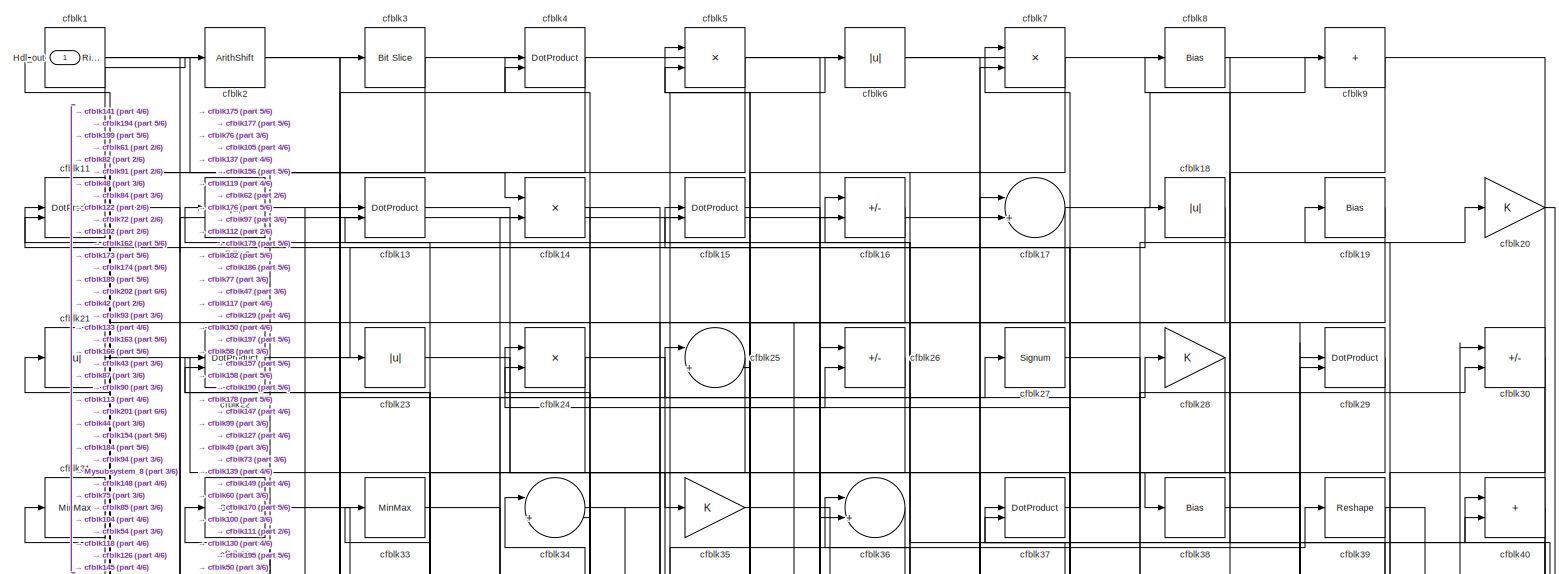
[diagram: root canvas - part 1/6, full width, top band]
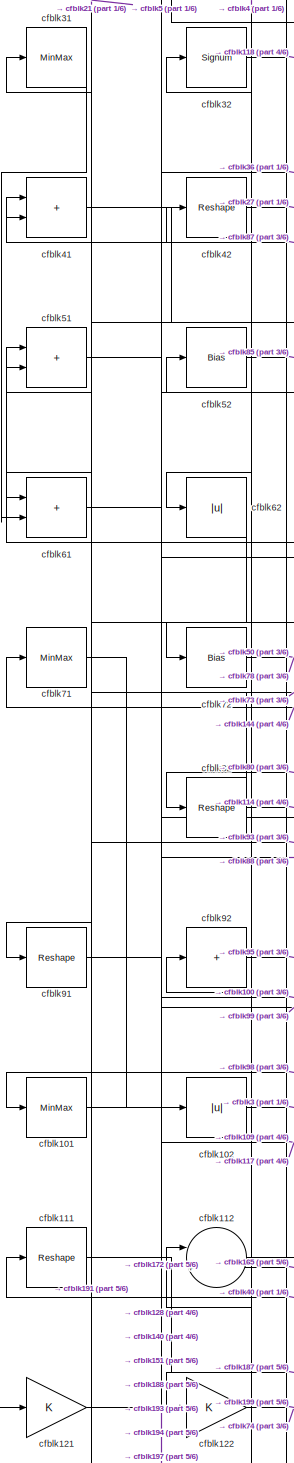
[diagram: root canvas - part 2/6, middle left region]
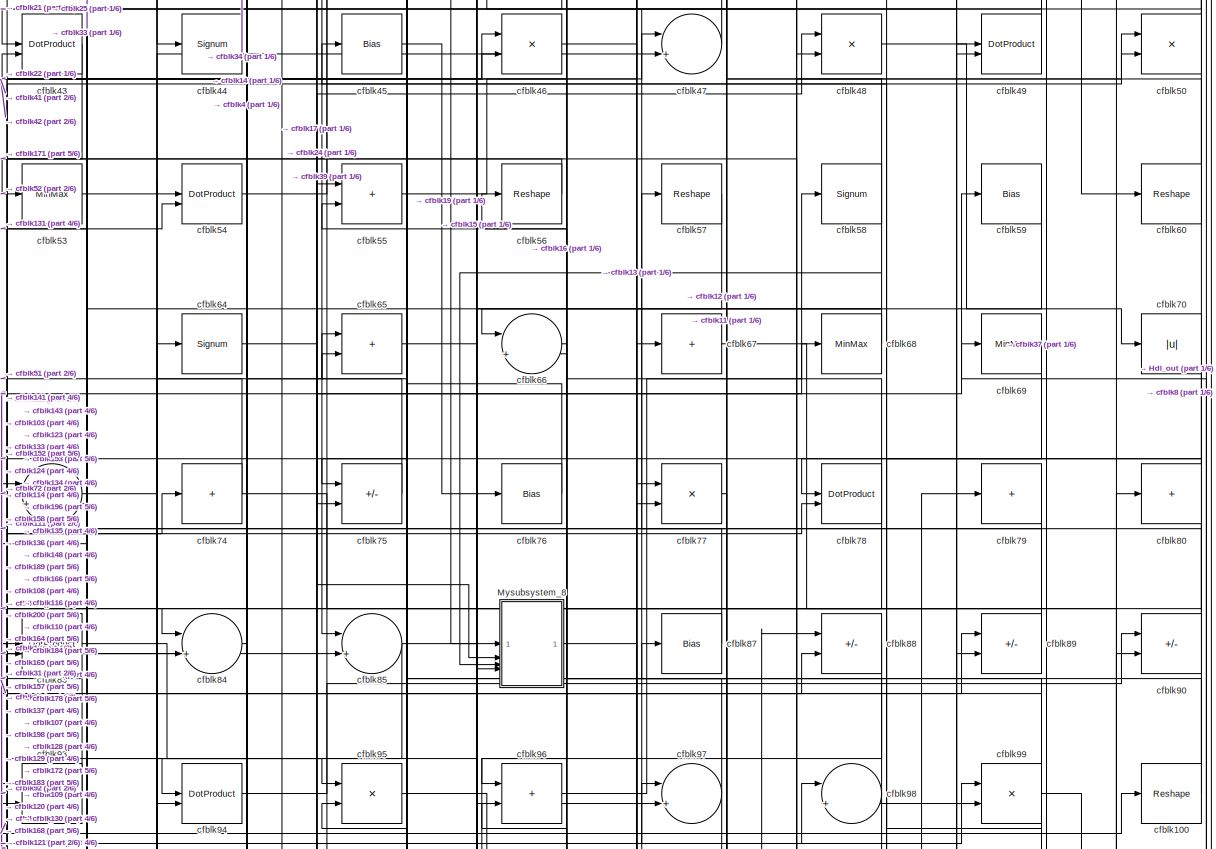
[diagram: root canvas - part 3/6, full width, middle band]
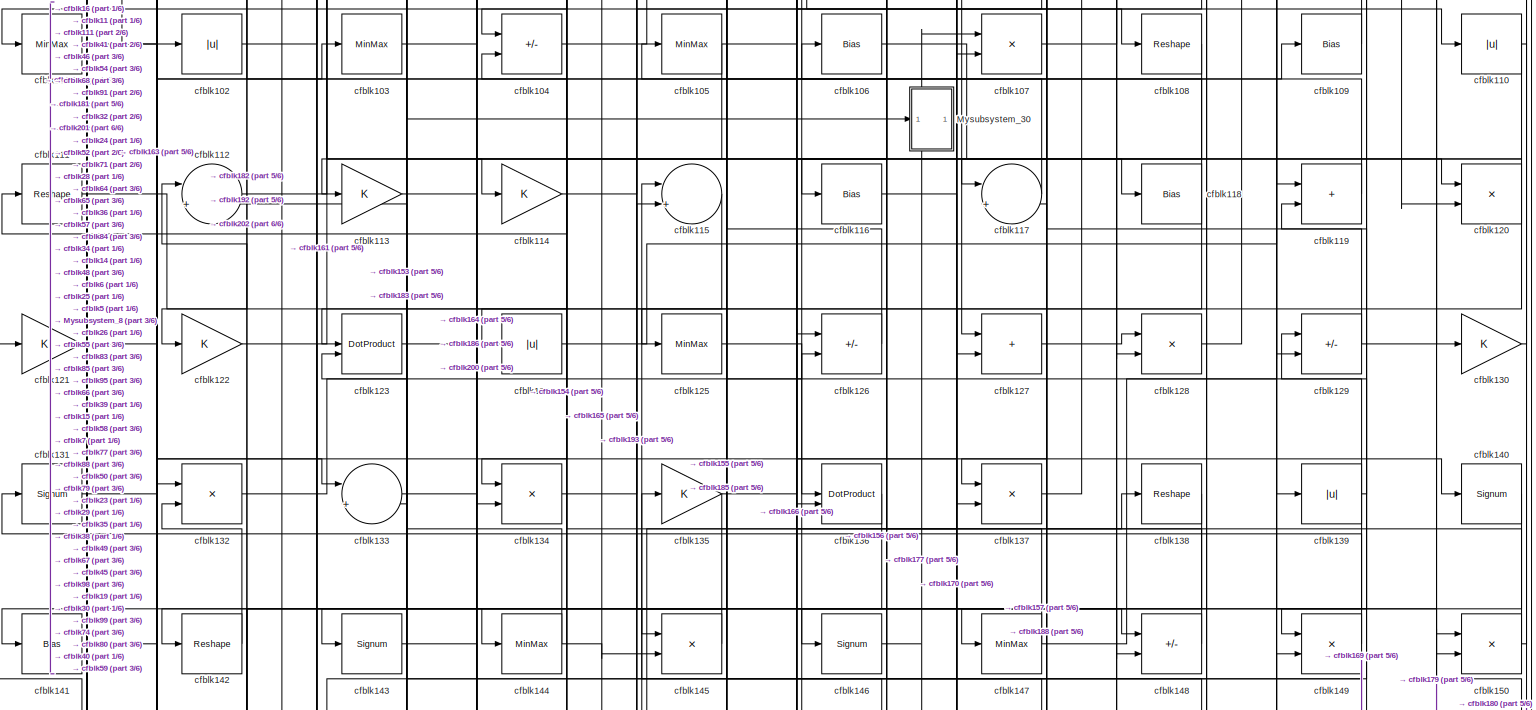
[diagram: root canvas - part 4/6, full width, middle band]
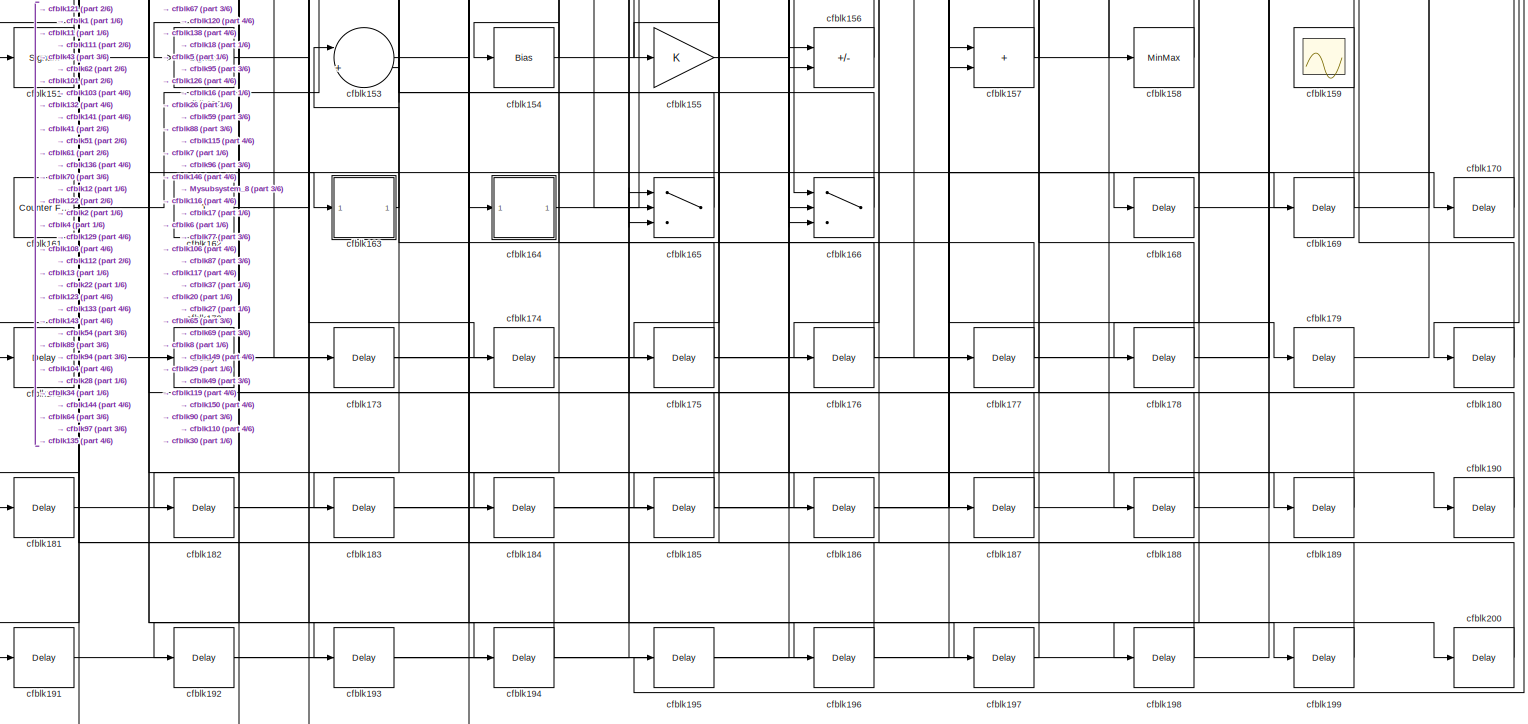
[diagram: root canvas - part 5/6, full width, bottom band]
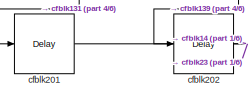
[diagram: root canvas - part 6/6, bottom left region]
MODEL slx_ab1712f912b3
KIND model
CONFIG AbsTol = auto
CONFIG EnableMultiTasking = off
CONFIG FixedStep = auto
CONFIG MaxStep = auto
CONFIG MinStep = auto
CONFIG RelTol = 1e-3
CONFIG SampleTimeConstraint = Unconstrained
CONFIG SolverName = VariableStepAuto
CONFIG StartTime = 0.0
CONFIG StopTime = 10.0
BLOCK [Outport] Hdl_out
  OutDataTypeStr = uint8
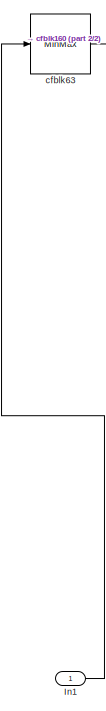
[diagram: Mysubsystem_30 - part 1/2, top left region]
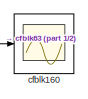
[diagram: Mysubsystem_30 - part 2/2, bottom right region]
BLOCK [SubSystem] Mysubsystem_30
  RTWFcnName = Mysubsystem_30
  RTWFcnNameOpts = User specified
  RTWFileNameOpts = Use function name
  RTWSystemCode = Reusable function
  TreatAsAtomicUnit = on
BLOCK [Inport] Mysubsystem_30/In1
BLOCK [Scope] Mysubsystem_30/cfblk160
  Floating = off
  NumInputPorts = 1
  ScopeSpecificationString = Simulink.scopes.TimeScopeBlockCfg('CurrentConfiguration', extmgr.ConfigurationSet(extmgr.Configuration('Core','General UI',true),extmgr.Configuration('Core','Source UI',true),extmgr.Configuration('Sources','WiredSimulink',true,'DataLoggingVariableName','ScopeData2','DataLoggingSaveFormat','Array','DataLoggingLimitDataPoints',true,'DataLoggingDecimation','1'),extmgr.Configuration('Visuals','Time Do...<+868ch>
BLOCK [MinMax] Mysubsystem_30/cfblk63
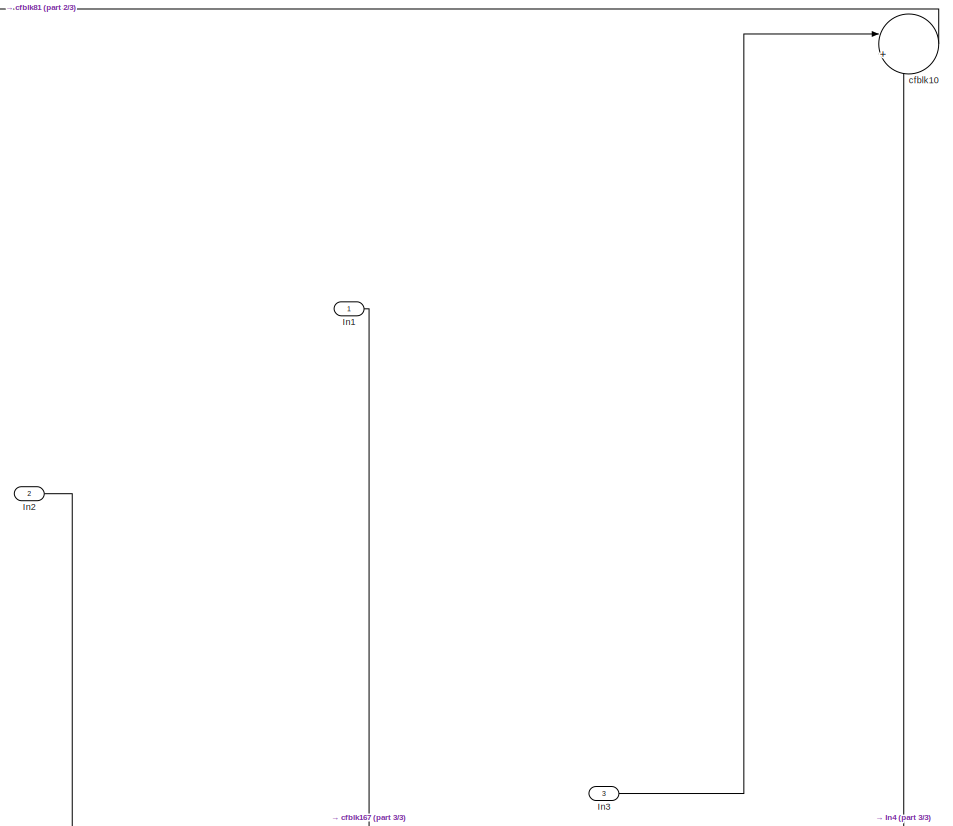
[diagram: Mysubsystem_8 - part 1/3, top right region]
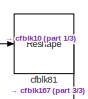
[diagram: Mysubsystem_8 - part 2/3, middle left region]
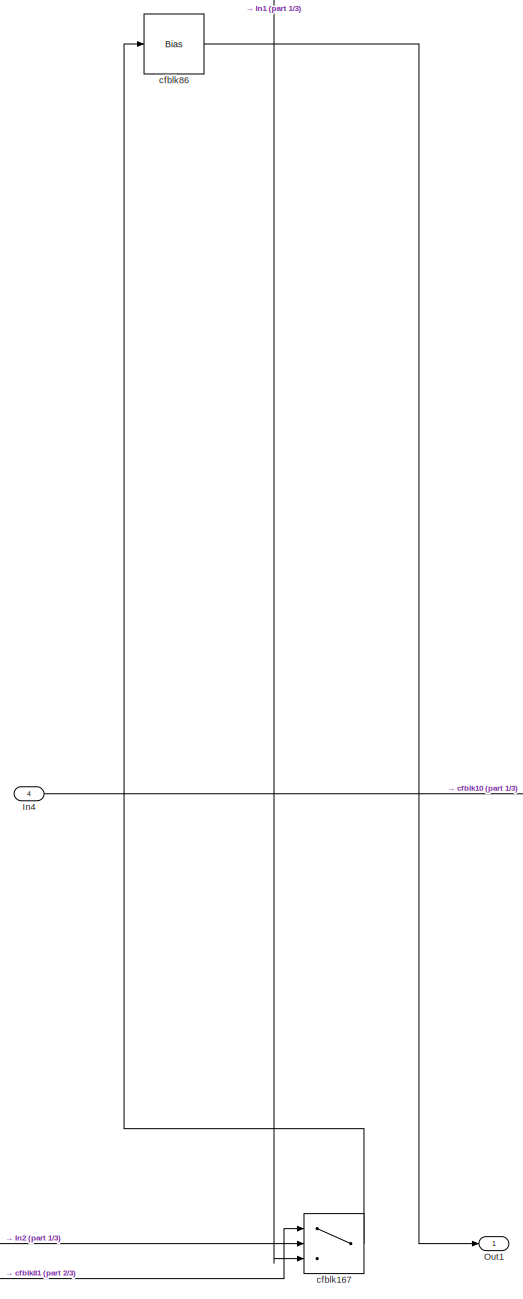
[diagram: Mysubsystem_8 - part 3/3, bottom center region]
BLOCK [SubSystem] Mysubsystem_8
  RTWFcnName = Mysubsystem_8
  RTWFcnNameOpts = User specified
  RTWFileNameOpts = Use function name
  RTWSystemCode = Reusable function
  TreatAsAtomicUnit = on
BLOCK [Inport] Mysubsystem_8/In1
BLOCK [Inport] Mysubsystem_8/In2
  Port = 2
BLOCK [Inport] Mysubsystem_8/In3
  Port = 3
BLOCK [Inport] Mysubsystem_8/In4
  Port = 4
BLOCK [Outport] Mysubsystem_8/Out1
BLOCK [Sum] Mysubsystem_8/cfblk10
  Inputs = |++
BLOCK [Switch] Mysubsystem_8/cfblk167
  InputSameDT = off
  SaturateOnIntegerOverflow = off
BLOCK [Reshape] Mysubsystem_8/cfblk81
BLOCK [Bias] Mysubsystem_8/cfblk86
  Bias = 0.0
  SaturateOnIntegerOverflow = off
BLOCK [Reference] cfblk1  REF=hdlsllib/Logic and Bit
Operations/Detect Rise
Nonnegative
  SourceBlock = hdlsllib/Logic and Bit\nOperations/Detect Rise\nNonnegative
  SourceType = Detect Rise Nonnegative
BLOCK [Reshape] cfblk100
BLOCK [MinMax] cfblk101
  OutDataTypeStr = uint8
BLOCK [Abs] cfblk102
  OutDataTypeStr = uint8
  SaturateOnIntegerOverflow = off
BLOCK [MinMax] cfblk103
  OutDataTypeStr = uint8
BLOCK [Sum] cfblk104
  IconShape = rectangular
  Inputs = +-
  OutDataTypeStr = uint8
BLOCK [MinMax] cfblk105
  OutDataTypeStr = uint8
BLOCK [Bias] cfblk106
  Bias = 0.0
  SaturateOnIntegerOverflow = off
BLOCK [Product] cfblk107
  Inputs = */
  OutDataTypeStr = uint8
  RndMeth = Zero
  SaturateOnIntegerOverflow = on
BLOCK [Reshape] cfblk108
BLOCK [Bias] cfblk109
  Bias = 0.0
  SaturateOnIntegerOverflow = off
BLOCK [DotProduct] cfblk11
  OutDataTypeStr = uint8
BLOCK [Abs] cfblk110
  OutDataTypeStr = uint8
  SaturateOnIntegerOverflow = off
BLOCK [Reshape] cfblk111
BLOCK [Sum] cfblk112
  Inputs = |++
  OutDataTypeStr = uint8
BLOCK [Gain] cfblk113
  OutDataTypeStr = uint8
BLOCK [Gain] cfblk114
  OutDataTypeStr = uint8
BLOCK [Sum] cfblk115
  Inputs = |++
  OutDataTypeStr = uint8
BLOCK [Bias] cfblk116
  Bias = 0.0
  SaturateOnIntegerOverflow = off
BLOCK [Sum] cfblk117
  Inputs = |++
  OutDataTypeStr = uint8
BLOCK [Bias] cfblk118
  Bias = 0.0
  SaturateOnIntegerOverflow = off
BLOCK [Sum] cfblk119
  IconShape = rectangular
  OutDataTypeStr = uint8
BLOCK [Abs] cfblk12
  OutDataTypeStr = uint8
  SaturateOnIntegerOverflow = off
BLOCK [Product] cfblk120
  Inputs = */
  OutDataTypeStr = uint8
  RndMeth = Zero
  SaturateOnIntegerOverflow = on
BLOCK [Gain] cfblk121
  OutDataTypeStr = uint8
BLOCK [Gain] cfblk122
  OutDataTypeStr = uint8
BLOCK [DotProduct] cfblk123
  OutDataTypeStr = uint8
BLOCK [Abs] cfblk124
  OutDataTypeStr = uint8
  SaturateOnIntegerOverflow = off
BLOCK [MinMax] cfblk125
  OutDataTypeStr = uint8
BLOCK [Sum] cfblk126
  IconShape = rectangular
  Inputs = +-
  OutDataTypeStr = uint8
BLOCK [Sum] cfblk127
  IconShape = rectangular
  OutDataTypeStr = uint8
BLOCK [Product] cfblk128
  Inputs = */
  OutDataTypeStr = uint8
  RndMeth = Zero
  SaturateOnIntegerOverflow = on
BLOCK [Sum] cfblk129
  IconShape = rectangular
  Inputs = +-
  OutDataTypeStr = uint8
BLOCK [DotProduct] cfblk13
  OutDataTypeStr = uint8
BLOCK [Gain] cfblk130
  OutDataTypeStr = uint8
BLOCK [Signum] cfblk131
BLOCK [Product] cfblk132
  Inputs = */
  OutDataTypeStr = uint8
  RndMeth = Zero
  SaturateOnIntegerOverflow = on
BLOCK [Sum] cfblk133
  Inputs = |++
  OutDataTypeStr = uint8
BLOCK [Product] cfblk134
  Inputs = */
  OutDataTypeStr = uint8
  RndMeth = Zero
  SaturateOnIntegerOverflow = on
BLOCK [Gain] cfblk135
  OutDataTypeStr = uint8
BLOCK [DotProduct] cfblk136
  OutDataTypeStr = uint8
BLOCK [Product] cfblk137
  Inputs = */
  OutDataTypeStr = uint8
  RndMeth = Zero
  SaturateOnIntegerOverflow = on
BLOCK [Reshape] cfblk138
BLOCK [Abs] cfblk139
  OutDataTypeStr = uint8
  SaturateOnIntegerOverflow = off
BLOCK [Product] cfblk14
  Inputs = */
  OutDataTypeStr = uint8
  RndMeth = Zero
  SaturateOnIntegerOverflow = on
BLOCK [Signum] cfblk140
BLOCK [Bias] cfblk141
  Bias = 0.0
  SaturateOnIntegerOverflow = off
BLOCK [Reshape] cfblk142
BLOCK [Signum] cfblk143
BLOCK [MinMax] cfblk144
  OutDataTypeStr = uint8
BLOCK [Product] cfblk145
  Inputs = */
  OutDataTypeStr = uint8
  RndMeth = Zero
  SaturateOnIntegerOverflow = on
BLOCK [Signum] cfblk146
BLOCK [MinMax] cfblk147
  OutDataTypeStr = uint8
BLOCK [Sum] cfblk148
  IconShape = rectangular
  Inputs = +-
  OutDataTypeStr = uint8
BLOCK [Product] cfblk149
  Inputs = */
  OutDataTypeStr = uint8
  RndMeth = Zero
  SaturateOnIntegerOverflow = on
BLOCK [DotProduct] cfblk15
  OutDataTypeStr = uint8
BLOCK [Product] cfblk150
  Inputs = */
  OutDataTypeStr = uint8
  RndMeth = Zero
  SaturateOnIntegerOverflow = on
BLOCK [Signum] cfblk151
BLOCK [Signum] cfblk152
BLOCK [Sum] cfblk153
  Inputs = |++
  OutDataTypeStr = uint8
BLOCK [Bias] cfblk154
  Bias = 0.0
  SaturateOnIntegerOverflow = off
BLOCK [Gain] cfblk155
  OutDataTypeStr = uint8
BLOCK [Sum] cfblk156
  IconShape = rectangular
  Inputs = +-
  OutDataTypeStr = uint8
BLOCK [Sum] cfblk157
  IconShape = rectangular
  OutDataTypeStr = uint8
BLOCK [MinMax] cfblk158
  OutDataTypeStr = uint8
BLOCK [Scope] cfblk159
  Floating = on
  NumInputPorts = 1
  ScopeSpecificationString = Simulink.scopes.TimeScopeBlockCfg('CurrentConfiguration', extmgr.ConfigurationSet(extmgr.Configuration('Core','General UI',true,'FigureColor',[0.156862745098039 0.156862745098039 0.156862745098039]),extmgr.Configuration('Core','Source UI',true),extmgr.Configuration('Sources','WiredSimulink',true,'DataLoggingVariableName','ScopeData1','DataLoggingSaveFormat','StructureWithTime','DataLoggingLimitDat...<+2713ch>
BLOCK [Sum] cfblk16
  IconShape = rectangular
  Inputs = +-
  OutDataTypeStr = uint8
BLOCK [Reference] cfblk161  REF=hdlsllib/Sources/Counter
Free-Running
  SourceBlock = hdlsllib/Sources/Counter\nFree-Running
  SourceType = Counter Free-Running
BLOCK [Constant] cfblk162
  OutDataTypeStr = uint8
  SampleTime = -1
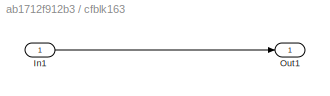
BLOCK [SubSystem] cfblk163
  LibrarySourceBlock = hdlsllib/Ports &\nSubsystems/Subsystem
BLOCK [Inport] cfblk163/In1
BLOCK [Outport] cfblk163/Out1
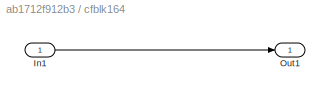
BLOCK [SubSystem] cfblk164
  LibrarySourceBlock = hdlsllib/Ports &\nSubsystems/Subsystem
BLOCK [Inport] cfblk164/In1
BLOCK [Outport] cfblk164/Out1
BLOCK [Switch] cfblk165
  InputSameDT = off
  OutDataTypeStr = uint8
  SaturateOnIntegerOverflow = off
BLOCK [Switch] cfblk166
  InputSameDT = off
  OutDataTypeStr = uint8
  SaturateOnIntegerOverflow = off
BLOCK [Delay] cfblk168
  InputPortMap = u0
  SampleTime = 1
BLOCK [Delay] cfblk169
  InputPortMap = u0
  SampleTime = 1
BLOCK [Sum] cfblk17
  Inputs = |++
  OutDataTypeStr = uint8
BLOCK [Delay] cfblk170
  InputPortMap = u0
  SampleTime = 1
BLOCK [Delay] cfblk171
  InputPortMap = u0
  SampleTime = 1
BLOCK [Delay] cfblk172
  InputPortMap = u0
  SampleTime = 1
BLOCK [Delay] cfblk173
  InputPortMap = u0
  SampleTime = 1
BLOCK [Delay] cfblk174
  InputPortMap = u0
  SampleTime = 1
BLOCK [Delay] cfblk175
  InputPortMap = u0
  SampleTime = 1
BLOCK [Delay] cfblk176
  InputPortMap = u0
  SampleTime = 1
BLOCK [Delay] cfblk177
  InputPortMap = u0
  SampleTime = 1
BLOCK [Delay] cfblk178
  InputPortMap = u0
  SampleTime = 1
BLOCK [Delay] cfblk179
  InputPortMap = u0
  SampleTime = 1
BLOCK [Abs] cfblk18
  OutDataTypeStr = uint8
  SaturateOnIntegerOverflow = off
BLOCK [Delay] cfblk180
  InputPortMap = u0
  SampleTime = 1
BLOCK [Delay] cfblk181
  InputPortMap = u0
  SampleTime = 1
BLOCK [Delay] cfblk182
  InputPortMap = u0
  SampleTime = 1
BLOCK [Delay] cfblk183
  InputPortMap = u0
  SampleTime = 1
BLOCK [Delay] cfblk184
  InputPortMap = u0
  SampleTime = 1
BLOCK [Delay] cfblk185
  InputPortMap = u0
  SampleTime = 1
BLOCK [Delay] cfblk186
  InputPortMap = u0
  SampleTime = 1
BLOCK [Delay] cfblk187
  InputPortMap = u0
  SampleTime = 1
BLOCK [Delay] cfblk188
  InputPortMap = u0
  SampleTime = 1
BLOCK [Delay] cfblk189
  InputPortMap = u0
  SampleTime = 1
BLOCK [Bias] cfblk19
  Bias = 0.0
  SaturateOnIntegerOverflow = off
BLOCK [Delay] cfblk190
  InputPortMap = u0
  SampleTime = 1
BLOCK [Delay] cfblk191
  InputPortMap = u0
  SampleTime = 1
BLOCK [Delay] cfblk192
  InputPortMap = u0
  SampleTime = 1
BLOCK [Delay] cfblk193
  InputPortMap = u0
  SampleTime = 1
BLOCK [Delay] cfblk194
  InputPortMap = u0
  SampleTime = 1
BLOCK [Delay] cfblk195
  InputPortMap = u0
  SampleTime = 1
BLOCK [Delay] cfblk196
  InputPortMap = u0
  SampleTime = 1
BLOCK [Delay] cfblk197
  InputPortMap = u0
  SampleTime = 1
BLOCK [Delay] cfblk198
  InputPortMap = u0
  SampleTime = 1
BLOCK [Delay] cfblk199
  InputPortMap = u0
  SampleTime = 1
BLOCK [ArithShift] cfblk2
  BitShiftNumber = 8
  InputPortMap = u0
BLOCK [Gain] cfblk20
  OutDataTypeStr = uint8
BLOCK [Delay] cfblk200
  InputPortMap = u0
  SampleTime = 1
BLOCK [Delay] cfblk201
  InputPortMap = u0
  SampleTime = 1
BLOCK [Delay] cfblk202
  InputPortMap = u0
  SampleTime = 1
BLOCK [Abs] cfblk21
  OutDataTypeStr = uint8
  SaturateOnIntegerOverflow = off
BLOCK [DotProduct] cfblk22
  OutDataTypeStr = uint8
BLOCK [Abs] cfblk23
  OutDataTypeStr = uint8
  SaturateOnIntegerOverflow = off
BLOCK [Product] cfblk24
  Inputs = */
  OutDataTypeStr = uint8
  RndMeth = Zero
  SaturateOnIntegerOverflow = on
BLOCK [Sum] cfblk25
  Inputs = |++
  OutDataTypeStr = uint8
BLOCK [Sum] cfblk26
  IconShape = rectangular
  Inputs = +-
  OutDataTypeStr = uint8
BLOCK [Signum] cfblk27
BLOCK [Gain] cfblk28
  OutDataTypeStr = uint8
BLOCK [DotProduct] cfblk29
  OutDataTypeStr = uint8
BLOCK [Reference] cfblk3  REF=hdlsllib/Logic and Bit
Operations/Bit Slice
  SourceBlock = hdlsllib/Logic and Bit\nOperations/Bit Slice
  SourceType = Bit Slice
BLOCK [Sum] cfblk30
  IconShape = rectangular
  Inputs = +-
  OutDataTypeStr = uint8
BLOCK [MinMax] cfblk31
  OutDataTypeStr = uint8
BLOCK [Signum] cfblk32
BLOCK [MinMax] cfblk33
  OutDataTypeStr = uint8
BLOCK [Sum] cfblk34
  Inputs = |++
  OutDataTypeStr = uint8
BLOCK [Gain] cfblk35
  OutDataTypeStr = uint8
BLOCK [Sum] cfblk36
  Inputs = |++
  OutDataTypeStr = uint8
BLOCK [DotProduct] cfblk37
  OutDataTypeStr = uint8
BLOCK [Bias] cfblk38
  Bias = 0.0
  SaturateOnIntegerOverflow = off
BLOCK [Reshape] cfblk39
BLOCK [DotProduct] cfblk4
  OutDataTypeStr = uint8
BLOCK [Sum] cfblk40
  IconShape = rectangular
  OutDataTypeStr = uint8
BLOCK [Sum] cfblk41
  IconShape = rectangular
  OutDataTypeStr = uint8
BLOCK [Reshape] cfblk42
BLOCK [DotProduct] cfblk43
  OutDataTypeStr = uint8
BLOCK [Signum] cfblk44
BLOCK [Bias] cfblk45
  Bias = 0.0
  SaturateOnIntegerOverflow = off
BLOCK [Product] cfblk46
  Inputs = */
  OutDataTypeStr = uint8
  RndMeth = Zero
  SaturateOnIntegerOverflow = on
BLOCK [Sum] cfblk47
  Inputs = |++
  OutDataTypeStr = uint8
BLOCK [Product] cfblk48
  Inputs = */
  OutDataTypeStr = uint8
  RndMeth = Zero
  SaturateOnIntegerOverflow = on
BLOCK [DotProduct] cfblk49
  OutDataTypeStr = uint8
BLOCK [Product] cfblk5
  Inputs = */
  OutDataTypeStr = uint8
  RndMeth = Zero
  SaturateOnIntegerOverflow = on
BLOCK [Product] cfblk50
  Inputs = */
  OutDataTypeStr = uint8
  RndMeth = Zero
  SaturateOnIntegerOverflow = on
BLOCK [Sum] cfblk51
  IconShape = rectangular
  OutDataTypeStr = uint8
BLOCK [Bias] cfblk52
  Bias = 0.0
  SaturateOnIntegerOverflow = off
BLOCK [MinMax] cfblk53
  OutDataTypeStr = uint8
BLOCK [DotProduct] cfblk54
  OutDataTypeStr = uint8
BLOCK [Sum] cfblk55
  IconShape = rectangular
  OutDataTypeStr = uint8
BLOCK [Reshape] cfblk56
BLOCK [Reshape] cfblk57
BLOCK [Signum] cfblk58
BLOCK [Bias] cfblk59
  Bias = 0.0
  SaturateOnIntegerOverflow = off
BLOCK [Abs] cfblk6
  OutDataTypeStr = uint8
  SaturateOnIntegerOverflow = off
BLOCK [Reshape] cfblk60
BLOCK [Sum] cfblk61
  IconShape = rectangular
  OutDataTypeStr = uint8
BLOCK [Abs] cfblk62
  OutDataTypeStr = uint8
  SaturateOnIntegerOverflow = off
BLOCK [Signum] cfblk64
BLOCK [Sum] cfblk65
  IconShape = rectangular
  OutDataTypeStr = uint8
BLOCK [Sum] cfblk66
  Inputs = |++
  OutDataTypeStr = uint8
BLOCK [Sum] cfblk67
  IconShape = rectangular
  Inputs = +
  OutDataTypeStr = uint8
BLOCK [MinMax] cfblk68
  OutDataTypeStr = uint8
BLOCK [MinMax] cfblk69
  OutDataTypeStr = uint8
BLOCK [Product] cfblk7
  Inputs = */
  OutDataTypeStr = uint8
  RndMeth = Zero
  SaturateOnIntegerOverflow = on
BLOCK [Abs] cfblk70
  OutDataTypeStr = uint8
  SaturateOnIntegerOverflow = off
BLOCK [MinMax] cfblk71
  OutDataTypeStr = uint8
BLOCK [Bias] cfblk72
  Bias = 0.0
  SaturateOnIntegerOverflow = off
BLOCK [Sum] cfblk73
  Inputs = |++
  OutDataTypeStr = uint8
BLOCK [Sum] cfblk74
  IconShape = rectangular
  Inputs = +
  OutDataTypeStr = uint8
BLOCK [Sum] cfblk75
  IconShape = rectangular
  Inputs = +-
  OutDataTypeStr = uint8
BLOCK [Bias] cfblk76
  Bias = 0.0
  SaturateOnIntegerOverflow = off
BLOCK [Product] cfblk77
  Inputs = */
  OutDataTypeStr = uint8
  RndMeth = Zero
  SaturateOnIntegerOverflow = on
BLOCK [DotProduct] cfblk78
  OutDataTypeStr = uint8
BLOCK [Sum] cfblk79
  IconShape = rectangular
  Inputs = +
  OutDataTypeStr = uint8
BLOCK [Bias] cfblk8
  Bias = 0.0
  SaturateOnIntegerOverflow = off
BLOCK [Sum] cfblk80
  IconShape = rectangular
  Inputs = +
  OutDataTypeStr = uint8
BLOCK [Reshape] cfblk82
BLOCK [DotProduct] cfblk83
  OutDataTypeStr = uint8
BLOCK [Sum] cfblk84
  Inputs = |++
  OutDataTypeStr = uint8
BLOCK [Sum] cfblk85
  Inputs = |++
  OutDataTypeStr = uint8
BLOCK [Bias] cfblk87
  Bias = 0.0
  SaturateOnIntegerOverflow = off
BLOCK [Sum] cfblk88
  IconShape = rectangular
  Inputs = +-
  OutDataTypeStr = uint8
BLOCK [Sum] cfblk89
  IconShape = rectangular
  Inputs = +-
  OutDataTypeStr = uint8
BLOCK [Sum] cfblk9
  IconShape = rectangular
  Inputs = +
  OutDataTypeStr = uint8
BLOCK [Sum] cfblk90
  IconShape = rectangular
  Inputs = +-
  OutDataTypeStr = uint8
BLOCK [Reshape] cfblk91
BLOCK [Sum] cfblk92
  IconShape = rectangular
  Inputs = +
  OutDataTypeStr = uint8
BLOCK [Sum] cfblk93
  IconShape = rectangular
  Inputs = +-
  OutDataTypeStr = uint8
BLOCK [DotProduct] cfblk94
  OutDataTypeStr = uint8
BLOCK [Product] cfblk95
  Inputs = */
  OutDataTypeStr = uint8
  RndMeth = Zero
  SaturateOnIntegerOverflow = on
BLOCK [Sum] cfblk96
  IconShape = rectangular
  OutDataTypeStr = uint8
BLOCK [Sum] cfblk97
  Inputs = |++
  OutDataTypeStr = uint8
BLOCK [Sum] cfblk98
  Inputs = |++
  OutDataTypeStr = uint8
BLOCK [Product] cfblk99
  Inputs = */
  OutDataTypeStr = uint8
  RndMeth = Zero
  SaturateOnIntegerOverflow = on
LINE Mysubsystem_30/In1:1 -> Mysubsystem_30/cfblk63:1
LINE Mysubsystem_30/cfblk63:1 -> Mysubsystem_30/cfblk160:1
LINE Mysubsystem_8/In1:1 -> Mysubsystem_8/cfblk167:3
LINE Mysubsystem_8/In2:1 -> Mysubsystem_8/cfblk167:2
LINE Mysubsystem_8/In3:1 -> Mysubsystem_8/cfblk10:1
LINE Mysubsystem_8/In4:1 -> Mysubsystem_8/cfblk10:2
LINE Mysubsystem_8/cfblk10:1 -> Mysubsystem_8/cfblk81:1
LINE Mysubsystem_8/cfblk167:1 -> Mysubsystem_8/cfblk86:1
LINE Mysubsystem_8/cfblk81:1 -> Mysubsystem_8/cfblk167:1
LINE Mysubsystem_8/cfblk86:1 -> Mysubsystem_8/Out1:1
LINE Mysubsystem_8:1 -> cfblk168:1
NET cfblk100:1 -> Hdl_out:1, cfblk43:2
NET cfblk101:1 -> cfblk100:1, cfblk188:1
LINE cfblk102:1 -> cfblk3:1
LINE cfblk103:1 -> cfblk64:1
LINE cfblk104:1 -> cfblk6:1
NET cfblk105:1 -> cfblk134:2, cfblk26:1
LINE cfblk106:1 -> cfblk120:1
LINE cfblk107:1 -> cfblk50:2
LINE cfblk108:1 -> cfblk153:2
NET cfblk109:1 -> cfblk45:1, cfblk98:2
NET cfblk110:1 -> cfblk157:2, cfblk166:3, cfblk180:1
NET cfblk111:1 -> cfblk109:1, cfblk187:1, cfblk191:1, cfblk73:1
LINE cfblk112:1 -> cfblk40:1
LINE cfblk113:1 -> cfblk28:1
LINE cfblk114:1 -> cfblk48:1
LINE cfblk115:1 -> cfblk123:1
LINE cfblk116:1 -> cfblk170:1
NET cfblk117:1 -> Mysubsystem_30:1, cfblk92:1
NET cfblk118:1 -> cfblk127:2, cfblk25:2
LINE cfblk119:1 -> cfblk15:1
NET cfblk11:1 -> cfblk133:1, cfblk17:2, cfblk2:1
NET cfblk120:1 -> cfblk113:1, cfblk125:1, cfblk155:1
NET cfblk121:1 -> cfblk88:2, cfblk99:1
NET cfblk122:1 -> cfblk199:1, cfblk74:1
NET cfblk123:1 -> cfblk164:1, cfblk98:1
LINE cfblk124:1 -> cfblk49:1
LINE cfblk125:1 -> cfblk136:1
LINE cfblk126:1 -> cfblk5:1
LINE cfblk127:1 -> cfblk128:1
LINE cfblk128:1 -> cfblk79:1
NET cfblk129:1 -> cfblk15:2, cfblk80:1
NET cfblk12:1 -> cfblk173:1, cfblk93:1
LINE cfblk130:1 -> cfblk40:2
NET cfblk131:1 -> cfblk201:1, cfblk54:2
LINE cfblk132:1 -> cfblk126:2
NET cfblk133:1 -> cfblk200:1, cfblk65:2
LINE cfblk134:1 -> cfblk55:1
NET cfblk135:1 -> Mysubsystem_8:4, cfblk183:1
NET cfblk136:1 -> cfblk181:1, cfblk182:1
LINE cfblk137:1 -> cfblk88:1
NET cfblk138:1 -> cfblk144:1, cfblk185:1, cfblk192:1
NET cfblk139:1 -> cfblk105:1, cfblk19:1, cfblk202:1
NET cfblk13:1 -> cfblk77:1, cfblk99:2
LINE cfblk140:1 -> cfblk146:1
NET cfblk141:1 -> cfblk163:1, cfblk46:2, cfblk68:1
LINE cfblk142:1 -> cfblk132:2
LINE cfblk143:1 -> cfblk186:1
NET cfblk144:1 -> cfblk165:2, cfblk52:1, cfblk71:1
LINE cfblk145:1 -> cfblk142:1
NET cfblk146:1 -> cfblk107:1, cfblk177:1
NET cfblk147:1 -> cfblk24:1, cfblk29:1
NET cfblk148:1 -> cfblk36:1, cfblk66:2
LINE cfblk149:1 -> cfblk131:1
NET cfblk14:1 -> cfblk148:1, cfblk94:1
NET cfblk150:1 -> cfblk59:1, cfblk7:1
NET cfblk151:1 -> cfblk103:1, cfblk121:1
LINE cfblk152:1 -> cfblk169:1
LINE cfblk153:1 -> cfblk89:1
NET cfblk154:1 -> cfblk104:2, cfblk135:1
LINE cfblk155:1 -> cfblk138:1
LINE cfblk156:1 -> cfblk115:1
NET cfblk157:1 -> cfblk106:1, cfblk20:1, cfblk87:1
LINE cfblk158:1 -> cfblk65:1
LINE cfblk15:1 -> cfblk97:2
LINE cfblk161:1 -> cfblk129:1
LINE cfblk162:1 -> cfblk4:1
LINE cfblk163/In1:1 -> cfblk163/Out1:1
LINE cfblk163:1 -> cfblk13:2
LINE cfblk164/In1:1 -> cfblk164/Out1:1
LINE cfblk164:1 -> cfblk67:1
LINE cfblk165:1 -> cfblk112:2
LINE cfblk166:1 -> cfblk22:2
LINE cfblk168:1 -> cfblk90:2
LINE cfblk169:1 -> cfblk123:2
LINE cfblk16:1 -> cfblk141:1
LINE cfblk170:1 -> cfblk30:1
LINE cfblk171:1 -> cfblk94:2
LINE cfblk172:1 -> cfblk89:2
LINE cfblk173:1 -> cfblk29:2
LINE cfblk174:1 -> cfblk16:2
LINE cfblk175:1 -> cfblk153:1
LINE cfblk176:1 -> cfblk34:2
LINE cfblk177:1 -> cfblk5:2
LINE cfblk178:1 -> cfblk97:1
LINE cfblk179:1 -> cfblk150:1
NET cfblk17:1 -> cfblk75:2, cfblk9:1
LINE cfblk180:1 -> cfblk119:2
LINE cfblk181:1 -> cfblk126:1
LINE cfblk182:1 -> cfblk7:2
LINE cfblk183:1 -> cfblk49:2
LINE cfblk184:1 -> cfblk77:2
LINE cfblk185:1 -> cfblk132:1
LINE cfblk186:1 -> cfblk17:1
LINE cfblk187:1 -> cfblk112:1
LINE cfblk188:1 -> cfblk117:2
LINE cfblk189:1 -> cfblk13:1
LINE cfblk18:1 -> cfblk175:1
LINE cfblk190:1 -> cfblk165:1
LINE cfblk191:1 -> cfblk157:1
LINE cfblk192:1 -> cfblk149:2
LINE cfblk193:1 -> cfblk115:2
LINE cfblk194:1 -> cfblk11:2
LINE cfblk195:1 -> cfblk156:1
LINE cfblk196:1 -> cfblk54:1
LINE cfblk197:1 -> cfblk37:2
LINE cfblk198:1 -> cfblk95:2
LINE cfblk199:1 -> cfblk1:1
NET cfblk19:1 -> Mysubsystem_8:1, cfblk75:1
NET cfblk1:1 -> cfblk14:1, cfblk84:2
LINE cfblk200:1 -> cfblk96:2
LINE cfblk201:1 -> cfblk14:2
LINE cfblk202:1 -> cfblk23:1
LINE cfblk20:1 -> cfblk195:1
NET cfblk21:1 -> cfblk35:1, cfblk48:2
LINE cfblk22:1 -> cfblk18:1
LINE cfblk23:1 -> cfblk139:1
NET cfblk24:1 -> cfblk133:2, cfblk85:1
LINE cfblk25:1 -> cfblk43:1
LINE cfblk26:1 -> cfblk156:2
NET cfblk27:1 -> cfblk158:1, cfblk190:1
NET cfblk28:1 -> cfblk154:1, cfblk184:1
LINE cfblk29:1 -> cfblk117:1
LINE cfblk2:1 -> cfblk174:1
LINE cfblk30:1 -> cfblk149:1
LINE cfblk31:1 -> cfblk61:2
LINE cfblk32:1 -> cfblk118:1
LINE cfblk33:1 -> cfblk44:1
NET cfblk34:1 -> Mysubsystem_8:2, cfblk145:2, cfblk26:2
LINE cfblk35:1 -> cfblk119:1
NET cfblk36:1 -> cfblk104:1, cfblk62:1
LINE cfblk37:1 -> cfblk30:2
LINE cfblk38:1 -> cfblk150:2
NET cfblk39:1 -> cfblk127:1, cfblk60:1, cfblk73:2
LINE cfblk3:1 -> cfblk61:1
LINE cfblk40:1 -> cfblk111:1
NET cfblk41:1 -> cfblk128:2, cfblk193:1, cfblk194:1
LINE cfblk42:1 -> cfblk27:1
LINE cfblk43:1 -> cfblk171:1
LINE cfblk44:1 -> cfblk34:1
LINE cfblk45:1 -> cfblk76:1
LINE cfblk46:1 -> cfblk110:1
LINE cfblk47:1 -> cfblk12:1
LINE cfblk48:1 -> cfblk70:1
LINE cfblk49:1 -> cfblk37:1
NET cfblk4:1 -> cfblk122:1, cfblk72:1
LINE cfblk50:1 -> cfblk8:1
LINE cfblk51:1 -> cfblk197:1
LINE cfblk52:1 -> cfblk85:2
LINE cfblk53:1 -> cfblk46:1
LINE cfblk54:1 -> cfblk39:1
NET cfblk55:1 -> cfblk148:2, cfblk47:1
LINE cfblk56:1 -> cfblk53:1
NET cfblk57:1 -> cfblk124:1, cfblk83:1
NET cfblk58:1 -> Mysubsystem_8:3, cfblk137:1, cfblk24:2
LINE cfblk59:1 -> cfblk166:2
NET cfblk5:1 -> cfblk137:2, cfblk36:2, cfblk91:1
LINE cfblk60:1 -> cfblk11:1
LINE cfblk61:1 -> cfblk172:1
LINE cfblk62:1 -> cfblk151:1
LINE cfblk64:1 -> cfblk196:1
LINE cfblk65:1 -> cfblk189:1
LINE cfblk66:1 -> cfblk96:1
LINE cfblk67:1 -> cfblk129:2
LINE cfblk68:1 -> cfblk66:1
LINE cfblk69:1 -> cfblk198:1
LINE cfblk6:1 -> cfblk179:1
LINE cfblk70:1 -> cfblk152:1
LINE cfblk71:1 -> cfblk102:1
NET cfblk72:1 -> cfblk50:1, cfblk78:2
LINE cfblk73:1 -> cfblk47:2
NET cfblk74:1 -> cfblk130:1, cfblk51:1, cfblk51:2, cfblk69:1
LINE cfblk75:1 -> cfblk4:2
LINE cfblk76:1 -> cfblk25:1
LINE cfblk77:1 -> cfblk147:1
NET cfblk78:1 -> cfblk41:1, cfblk55:2, cfblk93:2
LINE cfblk79:1 -> cfblk116:1
NET cfblk7:1 -> cfblk145:1, cfblk176:1
NET cfblk80:1 -> cfblk78:1, cfblk82:1, cfblk84:1
NET cfblk82:1 -> cfblk114:1, cfblk21:1
LINE cfblk83:1 -> cfblk136:2
LINE cfblk84:1 -> cfblk134:1
NET cfblk85:1 -> cfblk107:2, cfblk143:1
NET cfblk87:1 -> cfblk22:1, cfblk41:2
LINE cfblk88:1 -> cfblk166:1
LINE cfblk89:1 -> cfblk57:1
LINE cfblk8:1 -> cfblk178:1
LINE cfblk90:1 -> cfblk33:1
LINE cfblk91:1 -> cfblk140:1
LINE cfblk92:1 -> cfblk95:1
NET cfblk93:1 -> cfblk31:1, cfblk32:1
LINE cfblk94:1 -> cfblk90:1
LINE cfblk95:1 -> cfblk108:1
LINE cfblk96:1 -> cfblk58:1
NET cfblk97:1 -> cfblk165:3, cfblk16:1
NET cfblk98:1 -> cfblk101:1, cfblk42:1
NET cfblk99:1 -> cfblk120:2, cfblk56:1, cfblk83:2
LINE cfblk9:1 -> cfblk38:1
note: NET lines group one-source signal fan-out (src -> all destinations, sorted); 1:1 wires keep LINE
